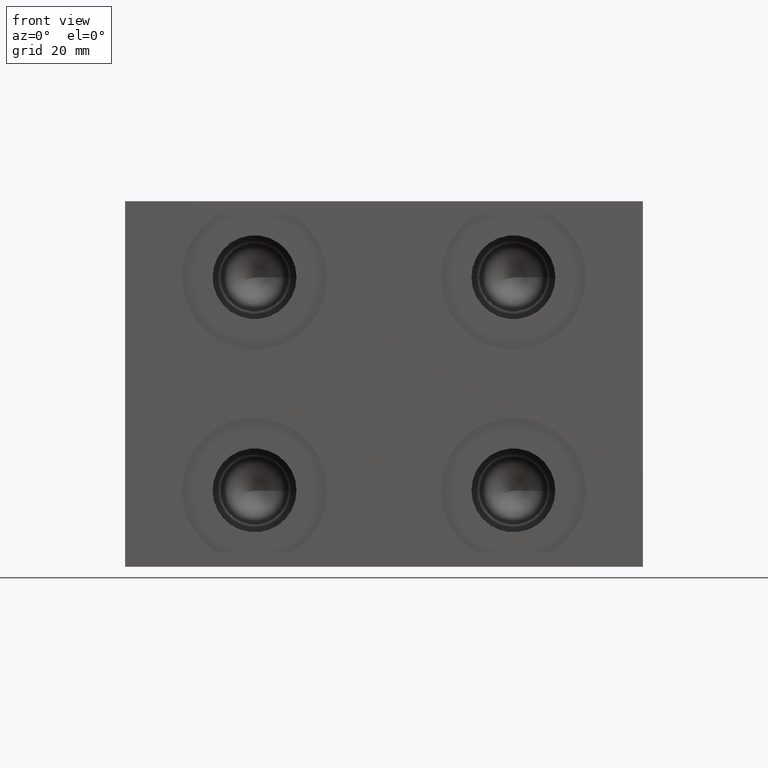
[diagram: clean part render]
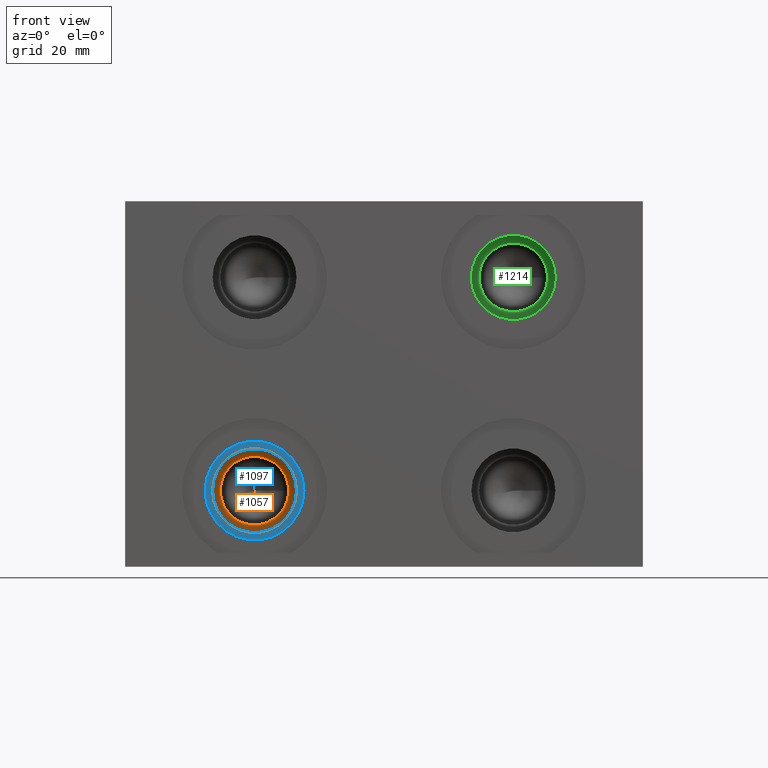
[diagram: same view with three faces highlighted in distinct colors, each labeled with its STEP entity id]
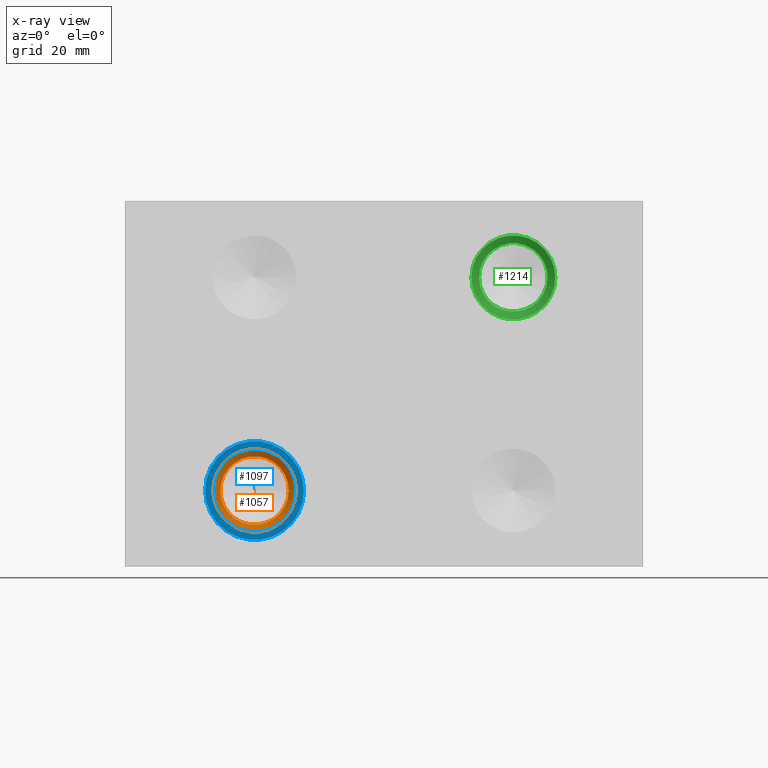
[diagram: x-ray of the same camera — body ghosted, the three highlighted faces saturated]
A machine part, front view with three faces highlighted in distinct colors.
The next image is the same camera in x-ray (body ghosted, the three faces saturated) — at least one of them is partly hidden behind the body in this view.
Their STEP definitions:

[orange] entity #1057 — the highlighted conical surface has half-angle 60 deg.
#1023=CARTESIAN_POINT('',(34.124899999999997,19.189087799999999,15.875000000000002));
#1024=VERTEX_POINT('',#1023);
#1025=CARTESIAN_POINT('',(26.974800000000002,19.189087799999999,15.875000000000002));
#1026=DIRECTION('',(0.0,-1.0,0.0));
#1027=DIRECTION('',(1.0,0.0,0.0));
#1028=AXIS2_PLACEMENT_3D('',#1025,#1026,#1027);
#1029=CIRCLE('',#1028,7.150099999999999);
#1030=EDGE_CURVE('',#1024,#1024,#1029,.T.);
#1038=CARTESIAN_POINT('',(26.974800000000002,18.72714985,15.875000000000002));
#1039=DIRECTION('',(0.0,-1.0,0.0));
#1040=DIRECTION('',(1.0,0.0,0.0));
#1041=AXIS2_PLACEMENT_3D('',#1038,#1039,#1040);
#1042=CONICAL_SURFACE('',#1041,7.950200000000001,60.000000020334987);
#1043=CARTESIAN_POINT('',(35.725100000000005,18.265211900000004,15.875000000000002));
#1044=VERTEX_POINT('',#1043);
#1045=CARTESIAN_POINT('',(26.974800000000002,18.265211900000004,15.875000000000002));
#1046=DIRECTION('',(0.0,-1.0,0.0));
#1047=DIRECTION('',(1.0,0.0,0.0));
#1048=AXIS2_PLACEMENT_3D('',#1045,#1046,#1047);
#1049=CIRCLE('',#1048,8.750300000000003);
#1050=EDGE_CURVE('',#1044,#1044,#1049,.T.);
#1051=ORIENTED_EDGE('',*,*,#1050,.T.);
#1052=EDGE_LOOP('',(#1051));
#1053=FACE_OUTER_BOUND('',#1052,.T.);
#1054=ORIENTED_EDGE('',*,*,#1030,.F.);
#1055=EDGE_LOOP('',(#1054));
#1056=FACE_BOUND('',#1055,.T.);
#1057=ADVANCED_FACE('',(#1053,#1056),#1042,.F.);

[blue] entity #1097 — the highlighted planar face has unit normal (0, 1, 0).
#1063=CARTESIAN_POINT('',(35.725100000000005,3.276600000000001,15.875000000000002));
#1064=VERTEX_POINT('',#1063);
#1065=CARTESIAN_POINT('',(26.974800000000002,3.276600000000001,15.875000000000002));
#1066=DIRECTION('',(0.0,-1.0,0.0));
#1067=DIRECTION('',(1.0,0.0,0.0));
#1068=AXIS2_PLACEMENT_3D('',#1065,#1066,#1067);
#1069=CIRCLE('',#1068,8.750300000000003);
#1070=EDGE_CURVE('',#1064,#1064,#1069,.T.);
#1078=CARTESIAN_POINT('',(36.4998,3.276600000000001,15.875000000000002));
#1079=DIRECTION('',(0.0,1.0,0.0));
#1080=DIRECTION('',(0.0,0.0,1.0));
#1081=AXIS2_PLACEMENT_3D('',#1078,#1079,#1080);
#1082=PLANE('',#1081);
#1083=CARTESIAN_POINT('',(37.274500000000003,3.276600000000001,15.875000000000002));
#1084=VERTEX_POINT('',#1083);
#1085=CARTESIAN_POINT('',(26.974800000000002,3.276600000000001,15.875000000000002));
#1086=DIRECTION('',(0.0,-1.0,0.0));
#1087=DIRECTION('',(1.0,0.0,0.0));
#1088=AXIS2_PLACEMENT_3D('',#1085,#1086,#1087);
#1089=CIRCLE('',#1088,10.299700000000001);
#1090=EDGE_CURVE('',#1084,#1084,#1089,.T.);
#1091=ORIENTED_EDGE('',*,*,#1090,.T.);
#1092=EDGE_LOOP('',(#1091));
#1093=FACE_OUTER_BOUND('',#1092,.T.);
#1094=ORIENTED_EDGE('',*,*,#1070,.F.);
#1095=EDGE_LOOP('',(#1094));
#1096=FACE_BOUND('',#1095,.T.);
#1097=ADVANCED_FACE('',(#1093,#1096),#1082,.F.);

[green] entity #1214 — the highlighted conical surface has half-angle 60 deg.
#1180=CARTESIAN_POINT('',(88.099899999999991,19.189087799999999,60.325000000000003));
#1181=VERTEX_POINT('',#1180);
#1182=CARTESIAN_POINT('',(80.949799999999996,19.189087799999999,60.325000000000003));
#1183=DIRECTION('',(0.0,-1.0,0.0));
#1184=DIRECTION('',(1.0,0.0,0.0));
#1185=AXIS2_PLACEMENT_3D('',#1182,#1183,#1184);
#1186=CIRCLE('',#1185,7.150099999999995);
#1187=EDGE_CURVE('',#1181,#1181,#1186,.T.);
#1195=CARTESIAN_POINT('',(80.949799999999996,18.72714985,60.325000000000003));
#1196=DIRECTION('',(0.0,-1.0,0.0));
#1197=DIRECTION('',(1.0,0.0,0.0));
#1198=AXIS2_PLACEMENT_3D('',#1195,#1196,#1197);
#1199=CONICAL_SURFACE('',#1198,7.95020000000001,60.000000020334987);
#1200=CARTESIAN_POINT('',(89.700100000000006,18.265211900000004,60.325000000000003));
#1201=VERTEX_POINT('',#1200);
#1202=CARTESIAN_POINT('',(80.949799999999996,18.265211900000004,60.325000000000003));
#1203=DIRECTION('',(0.0,-1.0,0.0));
#1204=DIRECTION('',(1.0,0.0,0.0));
#1205=AXIS2_PLACEMENT_3D('',#1202,#1203,#1204);
#1206=CIRCLE('',#1205,8.750300000000006);
#1207=EDGE_CURVE('',#1201,#1201,#1206,.T.);
#1208=ORIENTED_EDGE('',*,*,#1207,.T.);
#1209=EDGE_LOOP('',(#1208));
#1210=FACE_OUTER_BOUND('',#1209,.T.);
#1211=ORIENTED_EDGE('',*,*,#1187,.F.);
#1212=EDGE_LOOP('',(#1211));
#1213=FACE_BOUND('',#1212,.T.);
#1214=ADVANCED_FACE('',(#1210,#1213),#1199,.F.);